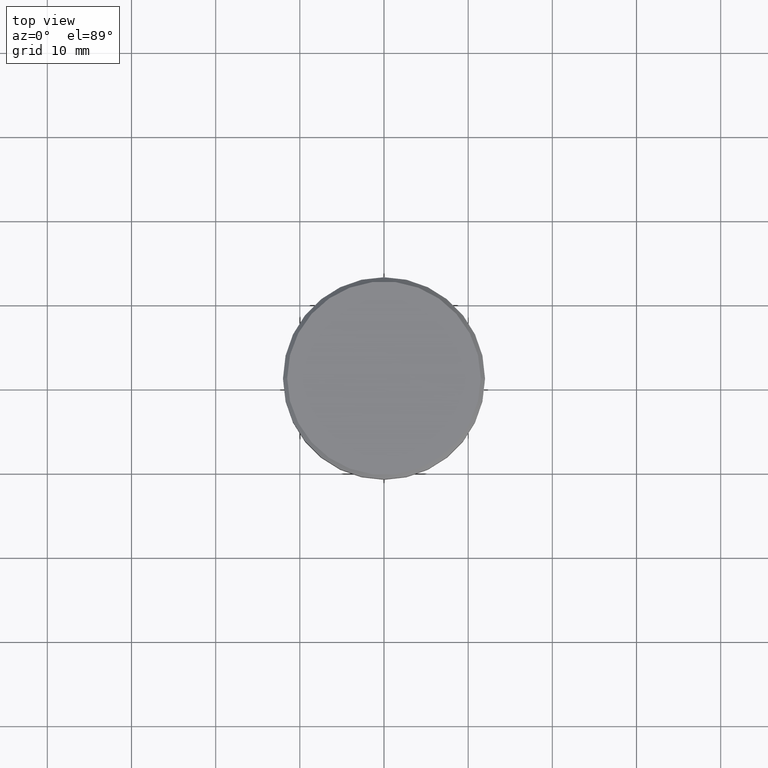
[diagram: clean part render]
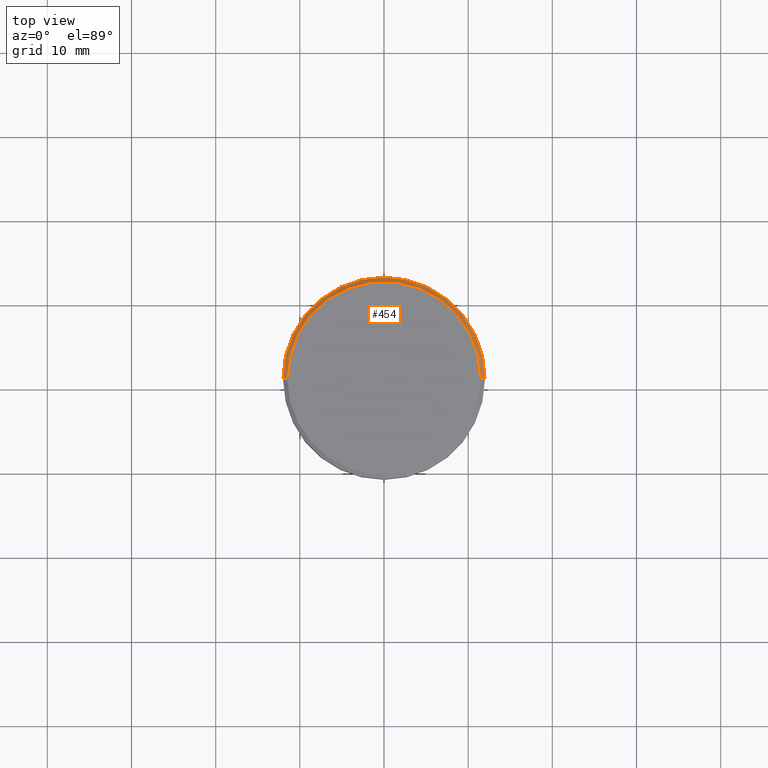
[diagram: same view with one face highlighted and labeled with its STEP entity id]
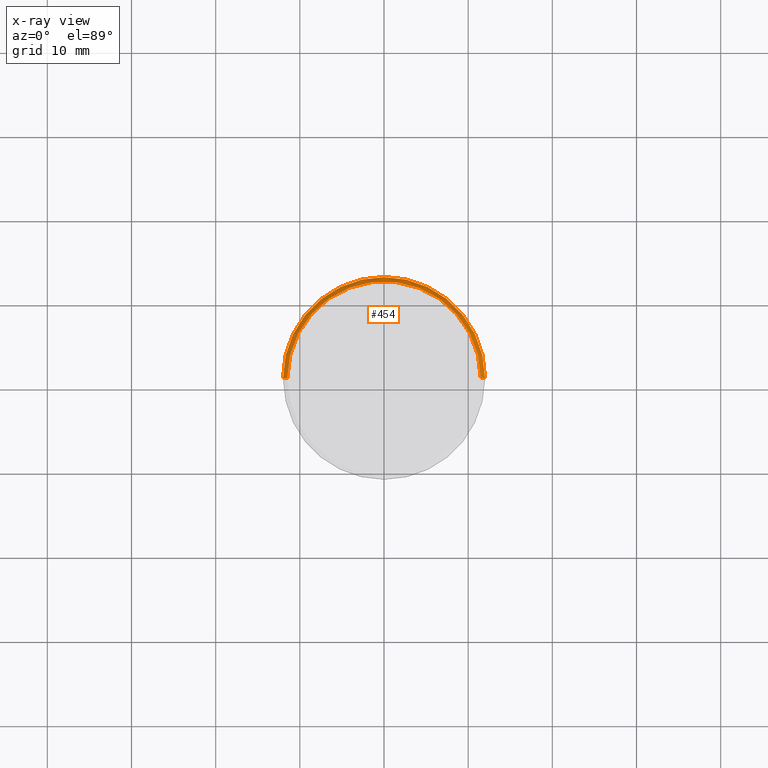
[diagram: x-ray of the same camera — body ghosted, the highlighted face saturated]
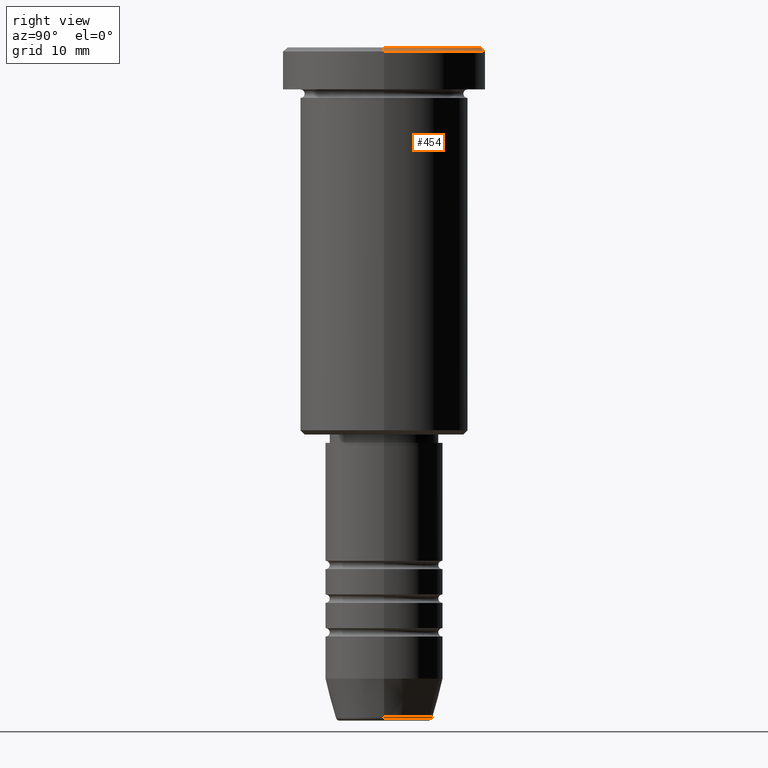
[diagram: same view with one face highlighted and labeled with its STEP entity id]
A machine part, top view. The second image highlights one B-rep face of the part: STEP entity #454.
The next image is the same camera in x-ray: the body ghosted, the highlighted face saturated — about 0% of this face is hidden behind the body in this view.
A second angle (right view) of the same face is appended — the face is thin or edge-on in the first view.
In plain terms, the highlighted conical surface has half-angle 45 deg.
Its self-contained STEP definition (entity closure, byte-faithful):
#3 = EDGE_CURVE ( 'NONE', #268, #211, #1113, .T. ) ;
#22 = ORIENTED_EDGE ( 'NONE', *, *, #286, .F. ) ;
#30 = CARTESIAN_POINT ( 'NONE',  ( 0.000000000000000000, 0.000000000000000000, 0.000000000000000000 ) ) ;
#36 = DIRECTION ( 'NONE',  ( -0.000000000000000000, -0.000000000000000000, 1.000000000000000000 ) ) ;
#83 = CARTESIAN_POINT ( 'NONE',  ( 11.49999999999999467, 1.438959988998139766E-15, 0.000000000000000000 ) ) ;
#102 = CONICAL_SURFACE ( 'NONE', #691, 11.49999999999999467, 0.7853981633974552734 ) ;
#152 = CARTESIAN_POINT ( 'NONE',  ( -12.00000000000000000, 1.469576158976823947E-15, -0.4999999999999987232 ) ) ;
#158 = CARTESIAN_POINT ( 'NONE',  ( 0.000000000000000000, 0.000000000000000000, -0.4999999999999987232 ) ) ;
#207 = ORIENTED_EDGE ( 'NONE', *, *, #491, .F. ) ;
#211 = VERTEX_POINT ( 'NONE', #152 ) ;
#215 = DIRECTION ( 'NONE',  ( 0.000000000000000000, 0.000000000000000000, -1.000000000000000000 ) ) ;
#268 = VERTEX_POINT ( 'NONE', #606 ) ;
#273 = CIRCLE ( 'NONE', #711, 12.00000000000000000 ) ;
#286 = EDGE_CURVE ( 'NONE', #211, #1085, #273, .T. ) ;
#318 = VERTEX_POINT ( 'NONE', #83 ) ;
#329 = CARTESIAN_POINT ( 'NONE',  ( 11.49999999999999467, 1.408343819019455584E-15, 0.000000000000000000 ) ) ;
#340 = DIRECTION ( 'NONE',  ( 0.000000000000000000, 0.000000000000000000, -1.000000000000000000 ) ) ;
#346 = ORIENTED_EDGE ( 'NONE', *, *, #627, .T. ) ;
#433 = DIRECTION ( 'NONE',  ( 0.7071067811865524577, 8.659560562354993255E-17, -0.7071067811865426878 ) ) ;
#446 = AXIS2_PLACEMENT_3D ( 'NONE', #1126, #36, #1118 ) ;
#454 = ADVANCED_FACE ( 'NONE', ( #1111 ), #102, .T. ) ;
#491 = EDGE_CURVE ( 'NONE', #318, #268, #955, .T. ) ;
#522 = ORIENTED_EDGE ( 'NONE', *, *, #3, .F. ) ;
#606 = CARTESIAN_POINT ( 'NONE',  ( -11.49999999999999467, 0.000000000000000000, 0.000000000000000000 ) ) ;
#627 = EDGE_CURVE ( 'NONE', #318, #1085, #694, .T. ) ;
#633 = VECTOR ( 'NONE', #1023, 1000.000000000000000 ) ;
#687 = EDGE_LOOP ( 'NONE', ( #207, #346, #22, #522 ) ) ;
#691 = AXIS2_PLACEMENT_3D ( 'NONE', #30, #215, #928 ) ;
#694 = LINE ( 'NONE', #329, #1096 ) ;
#711 = AXIS2_PLACEMENT_3D ( 'NONE', #158, #340, #894 ) ;
#733 = CARTESIAN_POINT ( 'NONE',  ( -11.49999999999999467, 0.000000000000000000, 0.000000000000000000 ) ) ;
#785 = CARTESIAN_POINT ( 'NONE',  ( 12.00000000000000000, 0.000000000000000000, -0.4999999999999987232 ) ) ;
#894 = DIRECTION ( 'NONE',  ( 1.000000000000000000, 0.000000000000000000, 0.000000000000000000 ) ) ;
#928 = DIRECTION ( 'NONE',  ( -1.000000000000000000, 0.000000000000000000, 0.000000000000000000 ) ) ;
#955 = CIRCLE ( 'NONE', #446, 11.49999999999999467 ) ;
#1023 = DIRECTION ( 'NONE',  ( -0.7071067811865524577, 0.000000000000000000, -0.7071067811865426878 ) ) ;
#1085 = VERTEX_POINT ( 'NONE', #785 ) ;
#1096 = VECTOR ( 'NONE', #433, 1000.000000000000000 ) ;
#1111 = FACE_OUTER_BOUND ( 'NONE', #687, .T. ) ;
#1113 = LINE ( 'NONE', #733, #633 ) ;
#1118 = DIRECTION ( 'NONE',  ( 1.000000000000000000, 0.000000000000000000, 0.000000000000000000 ) ) ;
#1126 = CARTESIAN_POINT ( 'NONE',  ( 0.000000000000000000, 0.000000000000000000, 0.000000000000000000 ) ) ;